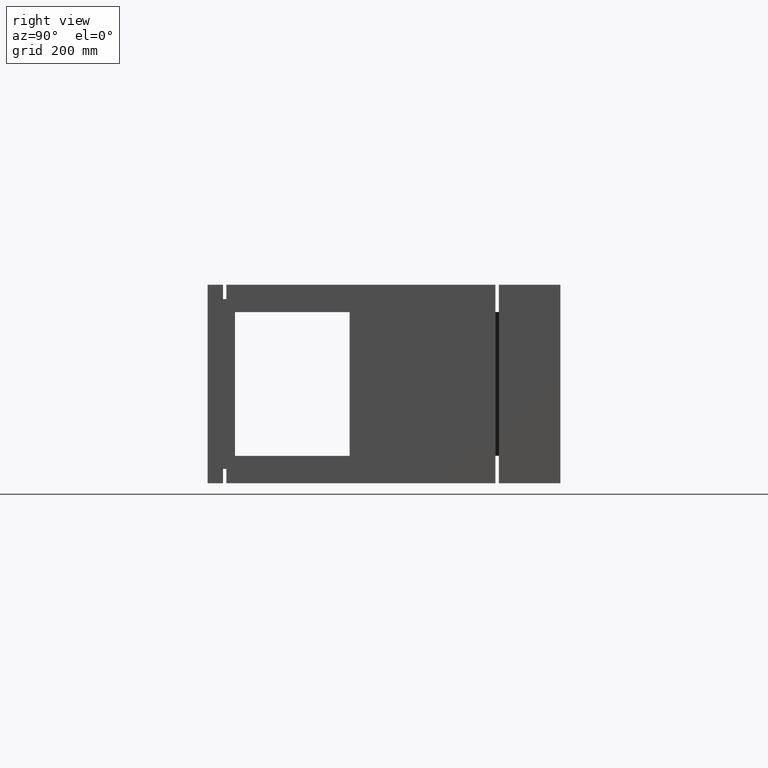
[diagram: clean part render]
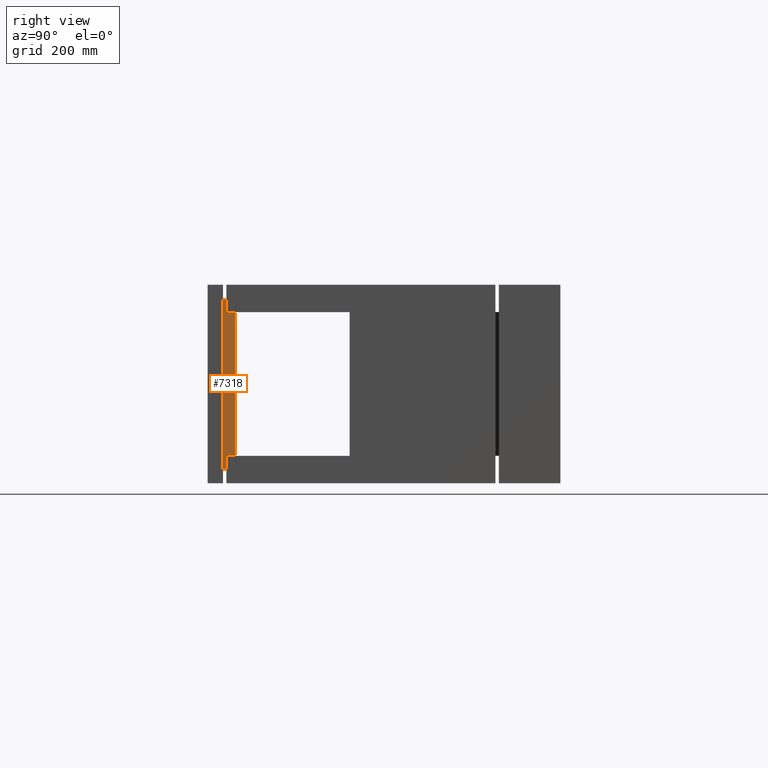
[diagram: same view with one face highlighted and labeled with its STEP entity id]
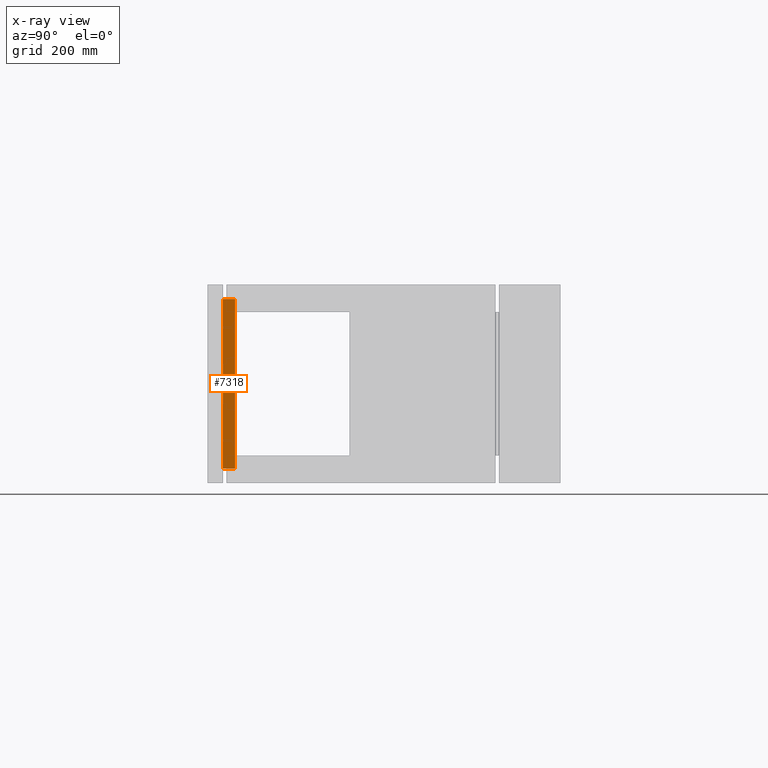
[diagram: x-ray of the same camera — body ghosted, the highlighted face saturated]
A machine part, right view. The second image highlights one B-rep face of the part: STEP entity #7318.
The next image is the same camera in x-ray: the body ghosted, the highlighted face saturated — about 0% of this face is hidden behind the body in this view.
In plain terms, the highlighted planar face has unit normal (1, 0, 0).
Its self-contained STEP definition (entity closure, byte-faithful):
#73 = DIRECTION ( 'NONE',  ( -0.000000000000000000, 1.000000000000000000, -0.000000000000000000 ) ) ;
#551 = DIRECTION ( 'NONE',  ( 0.000000000000000000, 0.000000000000000000, -1.000000000000000000 ) ) ;
#741 = VECTOR ( 'NONE', #8047, 1000.000000000000000 ) ;
#833 = LINE ( 'NONE', #6707, #10178 ) ;
#944 = CARTESIAN_POINT ( 'NONE',  ( 847.9999999999907914, 45.00000000000000000, -247.9999999999999432 ) ) ;
#1333 = EDGE_CURVE ( 'NONE', #2979, #7869, #833, .T. ) ;
#2814 = EDGE_CURVE ( 'NONE', #2979, #11704, #4492, .T. ) ;
#2950 = ORIENTED_EDGE ( 'NONE', *, *, #1333, .F. ) ;
#2979 = VERTEX_POINT ( 'NONE', #7710 ) ;
#3009 = EDGE_CURVE ( 'NONE', #11704, #8325, #7977, .T. ) ;
#3429 = CARTESIAN_POINT ( 'NONE',  ( 847.9999999999907914, 45.00000000000000000, 248.0000000000000000 ) ) ;
#4436 = DIRECTION ( 'NONE',  ( 1.000000000000000000, 0.000000000000000000, 0.000000000000000000 ) ) ;
#4492 = LINE ( 'NONE', #8011, #6788 ) ;
#4725 = DIRECTION ( 'NONE',  ( -0.000000000000000000, 1.000000000000000000, -0.000000000000000000 ) ) ;
#4804 = LINE ( 'NONE', #10896, #741 ) ;
#5117 = DIRECTION ( 'NONE',  ( 0.000000000000000000, 0.000000000000000000, -1.000000000000000000 ) ) ;
#5198 = EDGE_CURVE ( 'NONE', #7869, #8325, #4804, .T. ) ;
#5246 = CARTESIAN_POINT ( 'NONE',  ( 847.9999999999907914, 80.00000000000000000, 247.9999999999999432 ) ) ;
#5272 = CARTESIAN_POINT ( 'NONE',  ( 847.9999999999907914, 45.00000000000000000, -247.9999999999999432 ) ) ;
#6449 = PLANE ( 'NONE',  #7000 ) ;
#6573 = CARTESIAN_POINT ( 'NONE',  ( 847.9999999999907914, 80.00000000000000000, -247.9999999999999432 ) ) ;
#6707 = CARTESIAN_POINT ( 'NONE',  ( 847.9999999999907914, 45.00000000000000000, 248.0000000000000000 ) ) ;
#6788 = VECTOR ( 'NONE', #5117, 1000.000000000000000 ) ;
#7000 = AXIS2_PLACEMENT_3D ( 'NONE', #3429, #4436, #551 ) ;
#7318 = ADVANCED_FACE ( 'NONE', ( #7817 ), #6449, .T. ) ;
#7710 = CARTESIAN_POINT ( 'NONE',  ( 847.9999999999907914, 45.00000000000000000, 248.0000000000000000 ) ) ;
#7817 = FACE_OUTER_BOUND ( 'NONE', #9408, .T. ) ;
#7869 = VERTEX_POINT ( 'NONE', #5246 ) ;
#7977 = LINE ( 'NONE', #944, #9628 ) ;
#8011 = CARTESIAN_POINT ( 'NONE',  ( 847.9999999999907914, 45.00000000000000000, 248.0000000000000000 ) ) ;
#8047 = DIRECTION ( 'NONE',  ( 0.000000000000000000, 0.000000000000000000, -1.000000000000000000 ) ) ;
#8325 = VERTEX_POINT ( 'NONE', #6573 ) ;
#9408 = EDGE_LOOP ( 'NONE', ( #9648, #2950, #11961, #10504 ) ) ;
#9628 = VECTOR ( 'NONE', #4725, 1000.000000000000000 ) ;
#9648 = ORIENTED_EDGE ( 'NONE', *, *, #5198, .F. ) ;
#10178 = VECTOR ( 'NONE', #73, 1000.000000000000000 ) ;
#10504 = ORIENTED_EDGE ( 'NONE', *, *, #3009, .T. ) ;
#10896 = CARTESIAN_POINT ( 'NONE',  ( 847.9999999999907914, 80.00000000000000000, 248.0000000000000000 ) ) ;
#11704 = VERTEX_POINT ( 'NONE', #5272 ) ;
#11961 = ORIENTED_EDGE ( 'NONE', *, *, #2814, .T. ) ;